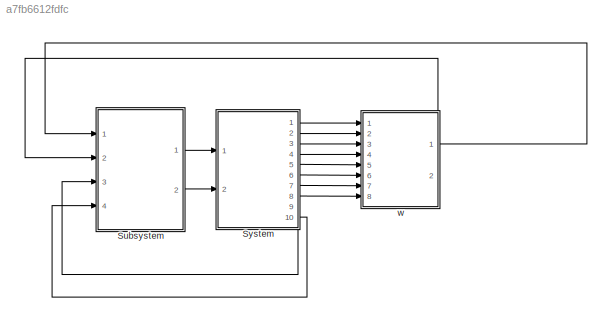
MODEL slx_a7fb6612fdfc
KIND model
CONFIG AbsTol = auto
CONFIG FixedStep = 0.001
CONFIG MaxStep = auto
CONFIG MinStep = auto
CONFIG RelTol = 1e-3
CONFIG SampleTimeConstraint = Unconstrained
CONFIG Solver = ode3
CONFIG SolverMode = Auto
CONFIG SolverName = ode3
CONFIG StartTime = 0.0
CONFIG StopTime = 10.0
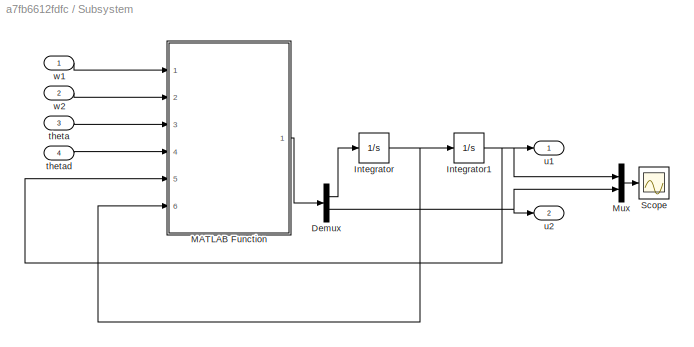
BLOCK [SubSystem] Subsystem
  Ports = [4, 2]
  RequestExecContextInheritance = off
  Variant = off
BLOCK [Demux] Subsystem/Demux
  DisplayOption = bar
  Outputs = 2
  Ports = [1, 2]
BLOCK [Integrator] Subsystem/Integrator
  Ports = [1, 1]
BLOCK [Integrator] Subsystem/Integrator1
  InitialCondition = 1
  Ports = [1, 1]
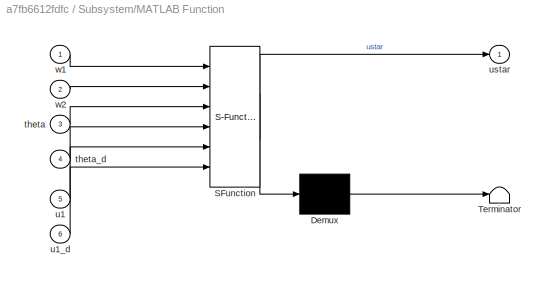
BLOCK [SubSystem] Subsystem/MATLAB Function
  ErrorFcn = Stateflow.Translate.translate
  PermitHierarchicalResolution = ParametersOnly
  Ports = [6, 1]
  RequestExecContextInheritance = off
  SFBlockType = MATLAB Function
  TreatAsAtomicUnit = on
  Variant = off
BLOCK [Demux] Subsystem/MATLAB Function/ Demux 
  Outputs = 1
  Ports = [1, 1]
BLOCK [S-Function] Subsystem/MATLAB Function/ SFunction 
  EnableBusSupport = on
  FunctionName = sf_sfun
  PortCounts = [6 2]
  Ports = [6, 2]
  SFunctionDeploymentMode = off
  Tag = Stateflow S-Function model2_fixed 2
BLOCK [Terminator] Subsystem/MATLAB Function/ Terminator 
BLOCK [Inport] Subsystem/MATLAB Function/theta
  IconDisplay = Port number
  Port = 3
BLOCK [Inport] Subsystem/MATLAB Function/theta_d
  IconDisplay = Port number
  Port = 4
BLOCK [Inport] Subsystem/MATLAB Function/u1
  IconDisplay = Port number
  Port = 5
BLOCK [Inport] Subsystem/MATLAB Function/u1_d
  IconDisplay = Port number
  Port = 6
BLOCK [Outport] Subsystem/MATLAB Function/ustar
  IconDisplay = Port number
BLOCK [Inport] Subsystem/MATLAB Function/w1
  IconDisplay = Port number
BLOCK [Inport] Subsystem/MATLAB Function/w2
  IconDisplay = Port number
  Port = 2
BLOCK [Mux] Subsystem/Mux
  DisplayOption = bar
  Inputs = 2
  Ports = [2, 1]
BLOCK [Scope] Subsystem/Scope
  DataFormat = Array
  Decimation = 1
  Grid = on
  LimitDataPoints = off
  MaxDataPoints = 5000
  Ports = [1]
  SampleInput = off
  SampleTime = -1
  SaveName = ScopeData
  SaveToWorkspace = off
  ShowLegends = off
  TickLabels = OneTimeTick
  TimeRange = auto
  YMax = 877.33327
  YMin = -522.12281
  ZoomMode = on
BLOCK [Inport] Subsystem/theta
  IconDisplay = Port number
  Port = 3
BLOCK [Inport] Subsystem/thetad
  IconDisplay = Port number
  Port = 4
BLOCK [Outport] Subsystem/u1
  IconDisplay = Port number
BLOCK [Outport] Subsystem/u2
  IconDisplay = Port number
  Port = 2
BLOCK [Inport] Subsystem/w1
  IconDisplay = Port number
BLOCK [Inport] Subsystem/w2
  IconDisplay = Port number
  Port = 2
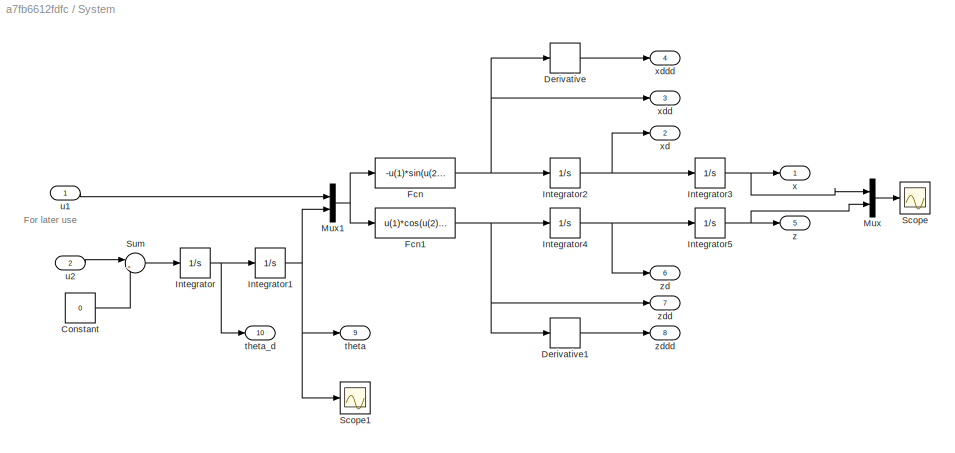
BLOCK [SubSystem] System
  Ports = [2, 10]
  RequestExecContextInheritance = off
  Variant = off
BLOCK [Constant] System/Constant
  Value = 0
BLOCK [Derivative] System/Derivative
BLOCK [Derivative] System/Derivative1
BLOCK [Fcn] System/Fcn
  Expr = -u(1)*sin(u(2))
BLOCK [Fcn] System/Fcn1
  Expr = u(1)*cos(u(2)) -1
BLOCK [Integrator] System/Integrator
  Ports = [1, 1]
BLOCK [Integrator] System/Integrator1
  InitialCondition = th0
  Ports = [1, 1]
BLOCK [Integrator] System/Integrator2
  Ports = [1, 1]
BLOCK [Integrator] System/Integrator3
  InitialCondition = x0
  Ports = [1, 1]
BLOCK [Integrator] System/Integrator4
  Ports = [1, 1]
BLOCK [Integrator] System/Integrator5
  InitialCondition = z0
  Ports = [1, 1]
BLOCK [Mux] System/Mux
  DisplayOption = bar
  Inputs = 2
  Ports = [2, 1]
BLOCK [Mux] System/Mux1
  DisplayOption = bar
  Inputs = 2
  Ports = [2, 1]
BLOCK [Scope] System/Scope
  DataFormat = Array
  Decimation = 1
  Grid = on
  LimitDataPoints = on
  MaxDataPoints = 5000
  Ports = [1]
  SampleInput = off
  SampleTime = -1
  SaveName = ScopeData1
  SaveToWorkspace = off
  ShowLegends = off
  TickLabels = OneTimeTick
  TimeRange = auto
  YMax = 10
  YMin = -10
  ZoomMode = on
BLOCK [Scope] System/Scope1
  DataFormat = Array
  Decimation = 1
  Grid = on
  LimitDataPoints = on
  MaxDataPoints = 5000
  Ports = [1]
  SampleInput = off
  SampleTime = -1
  SaveName = ScopeData2
  SaveToWorkspace = off
  ShowLegends = off
  TickLabels = OneTimeTick
  TimeRange = auto
  YMax = 10
  YMin = -10
  ZoomMode = on
BLOCK [Sum] System/Sum
  IconShape = round
  InputSameDT = off
  Inputs = |++
  OutDataTypeStr = Inherit: Inherit via internal rule
  Ports = [2, 1]
  SaturateOnIntegerOverflow = off
BLOCK [Outport] System/theta
  IconDisplay = Port number
  Port = 9
BLOCK [Outport] System/theta_d
  IconDisplay = Port number
  Port = 10
BLOCK [Inport] System/u1
  IconDisplay = Port number
BLOCK [Inport] System/u2
  IconDisplay = Port number
  Port = 2
BLOCK [Outport] System/x
  IconDisplay = Port number
BLOCK [Outport] System/xd
  IconDisplay = Port number
  Port = 2
BLOCK [Outport] System/xdd
  IconDisplay = Port number
  Port = 3
BLOCK [Outport] System/xddd
  IconDisplay = Port number
  Port = 4
BLOCK [Outport] System/z
  IconDisplay = Port number
  Port = 5
BLOCK [Outport] System/zd
  IconDisplay = Port number
  Port = 6
BLOCK [Outport] System/zdd
  IconDisplay = Port number
  Port = 7
BLOCK [Outport] System/zddd
  IconDisplay = Port number
  Port = 8
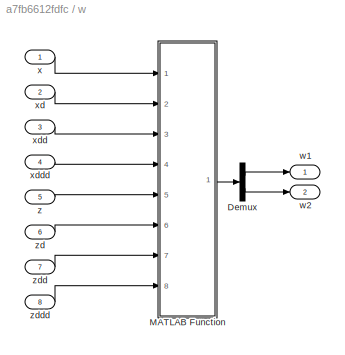
BLOCK [SubSystem] w
  Ports = [8, 2]
  RequestExecContextInheritance = off
  Variant = off
BLOCK [Demux] w/Demux
  DisplayOption = bar
  Outputs = 2
  Ports = [1, 2]
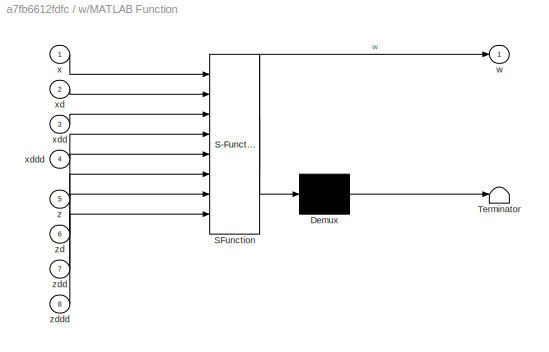
BLOCK [SubSystem] w/MATLAB Function
  ErrorFcn = Stateflow.Translate.translate
  PermitHierarchicalResolution = ParametersOnly
  Ports = [8, 1]
  RequestExecContextInheritance = off
  SFBlockType = MATLAB Function
  TreatAsAtomicUnit = on
  Variant = off
BLOCK [Demux] w/MATLAB Function/ Demux 
  Outputs = 1
  Ports = [1, 1]
BLOCK [S-Function] w/MATLAB Function/ SFunction 
  EnableBusSupport = on
  FunctionName = sf_sfun
  PortCounts = [8 2]
  Ports = [8, 2]
  SFunctionDeploymentMode = off
  Tag = Stateflow S-Function model2_fixed 3
BLOCK [Terminator] w/MATLAB Function/ Terminator 
BLOCK [Outport] w/MATLAB Function/w
  IconDisplay = Port number
BLOCK [Inport] w/MATLAB Function/x
  IconDisplay = Port number
BLOCK [Inport] w/MATLAB Function/xd
  IconDisplay = Port number
  Port = 2
BLOCK [Inport] w/MATLAB Function/xdd
  IconDisplay = Port number
  Port = 3
BLOCK [Inport] w/MATLAB Function/xddd
  IconDisplay = Port number
  Port = 4
BLOCK [Inport] w/MATLAB Function/z
  IconDisplay = Port number
  Port = 5
BLOCK [Inport] w/MATLAB Function/zd
  IconDisplay = Port number
  Port = 6
BLOCK [Inport] w/MATLAB Function/zdd
  IconDisplay = Port number
  Port = 7
BLOCK [Inport] w/MATLAB Function/zddd
  IconDisplay = Port number
  Port = 8
BLOCK [Outport] w/w1
  IconDisplay = Port number
BLOCK [Outport] w/w2
  IconDisplay = Port number
  Port = 2
BLOCK [Inport] w/x
  IconDisplay = Port number
BLOCK [Inport] w/xd
  IconDisplay = Port number
  Port = 2
BLOCK [Inport] w/xdd
  IconDisplay = Port number
  Port = 3
BLOCK [Inport] w/xddd
  IconDisplay = Port number
  Port = 4
BLOCK [Inport] w/z
  IconDisplay = Port number
  Port = 5
BLOCK [Inport] w/zd
  IconDisplay = Port number
  Port = 6
BLOCK [Inport] w/zdd
  IconDisplay = Port number
  Port = 7
BLOCK [Inport] w/zddd
  IconDisplay = Port number
  Port = 8
ANNOTATION System: For later use
LINE Subsystem/Demux:1 -> Subsystem/Integrator:1
NET Subsystem/Demux:2 -> Subsystem/Mux:2, Subsystem/u2:1
NET Subsystem/Integrator1:1 -> Subsystem/MATLAB Function:5, Subsystem/Mux:1, Subsystem/u1:1
NET Subsystem/Integrator:1 -> Subsystem/Integrator1:1, Subsystem/MATLAB Function:6
LINE Subsystem/MATLAB Function:1 -> Subsystem/Demux:1
LINE Subsystem/Mux:1 -> Subsystem/Scope:1
LINE Subsystem/theta:1 -> Subsystem/MATLAB Function:3
LINE Subsystem/thetad:1 -> Subsystem/MATLAB Function:4
LINE Subsystem/w1:1 -> Subsystem/MATLAB Function:1
LINE Subsystem/w2:1 -> Subsystem/MATLAB Function:2
LINE Subsystem:1 -> System:1
LINE Subsystem:2 -> System:2
LINE System/Constant:1 -> System/Sum:2
LINE System/Derivative1:1 -> System/zddd:1
LINE System/Derivative:1 -> System/xddd:1
NET System/Fcn1:1 -> System/Derivative1:1, System/Integrator4:1, System/zdd:1
NET System/Fcn:1 -> System/Derivative:1, System/Integrator2:1, System/xdd:1
NET System/Integrator1:1 -> System/Mux1:2, System/Scope1:1, System/theta:1
NET System/Integrator2:1 -> System/Integrator3:1, System/xd:1
NET System/Integrator3:1 -> System/Mux:1, System/x:1
NET System/Integrator4:1 -> System/Integrator5:1, System/zd:1
NET System/Integrator5:1 -> System/Mux:2, System/z:1
NET System/Integrator:1 -> System/Integrator1:1, System/theta_d:1
NET System/Mux1:1 -> System/Fcn1:1, System/Fcn:1
LINE System/Mux:1 -> System/Scope:1
LINE System/Sum:1 -> System/Integrator:1
LINE System/u1:1 -> System/Mux1:1
LINE System/u2:1 -> System/Sum:1
LINE System:1 -> w:1
LINE System:10 -> Subsystem:4
LINE System:2 -> w:2
LINE System:3 -> w:3
LINE System:4 -> w:4
LINE System:5 -> w:5
LINE System:6 -> w:6
LINE System:7 -> w:7
LINE System:8 -> w:8
LINE System:9 -> Subsystem:3
LINE w/Demux:1 -> w/w1:1
LINE w/Demux:2 -> w/w2:1
LINE w/MATLAB Function:1 -> w/Demux:1
LINE w/x:1 -> w/MATLAB Function:1
LINE w/xd:1 -> w/MATLAB Function:2
LINE w/xdd:1 -> w/MATLAB Function:3
LINE w/xddd:1 -> w/MATLAB Function:4
LINE w/z:1 -> w/MATLAB Function:5
LINE w/zd:1 -> w/MATLAB Function:6
LINE w/zdd:1 -> w/MATLAB Function:7
LINE w/zddd:1 -> w/MATLAB Function:8
LINE w:1 -> Subsystem:1
LINE w:2 -> Subsystem:2
note: NET lines group one-source signal fan-out (src -> all destinations, sorted); 1:1 wires keep LINE
CHART Subsystem/MATLAB Function states=1 transitions=1
  STATE_LABEL 'eML_blk_kernel()'
  STATE_LABEL 'SCRIPT:\nfunction ustar = fcn(w1,w2, theta, theta_d, u1,u1_d)\n%#codegen\n% th = theta;\n% bstarI = [    -sin(th),     cos(th); -cos(th)/u1, -sin(th)/u1];\n% w1ma = w1 + 2*u1*cos(th)*thd+u1*sin(th)*thd^2;\n% w2ma = w2 + u1*cos(th)*thd^2+2*u1*sin(th)*thd;\n\na_s = [-2*u1_d*theta_d*cos(theta) + u1*(theta_d)^2*sin(theta);...\n              -2*u1_d*theta_d*sin(theta) - u1*(theta_d)^2*cos(theta)];\n\nb_s = [-sin(...<+119ch>'
CHART w/MATLAB Function states=1 transitions=1
  STATE_LABEL 'eML_blk_kernel()'
  STATE_LABEL 'SCRIPT:\nfunction w = fcn(x, xd, xdd, xddd, z, zd, zdd, zddd)\n%#codegen\ns0 = 5;\nk11 = 4*s0; k12 = 6*s0^2; k13 = 4*s0^3; k14 = s0^4;\nk21 = 4*s0; k22 = 6*s0^2; k23 = 4*s0^3; k24 = s0^4;\nw1 = -k11*xddd-k12*xdd-k13*xd-k14*x;\nw2 = -k21*zddd-k22*zdd-k23*zd-k24*z;\nw = [w1;w2];'
